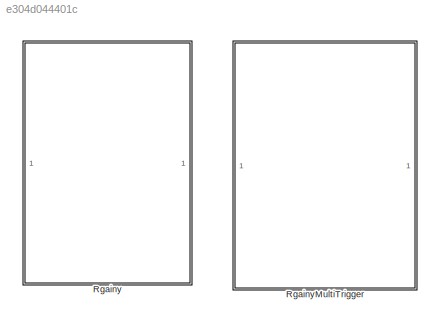
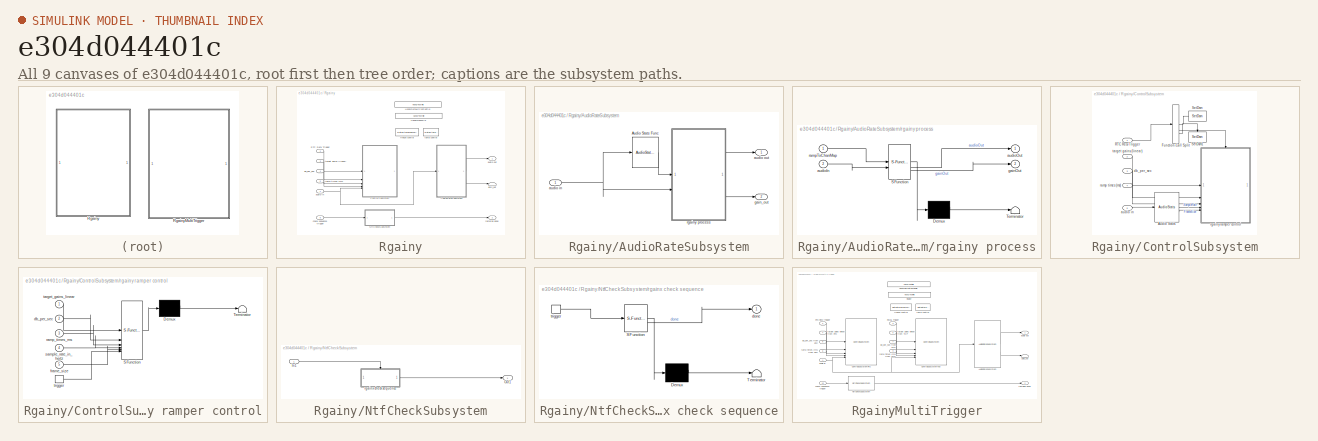
[diagram: thumbnail index - all 9 canvases of the model, root first then tree order]
MODEL slx_e304d044401c
KIND library
CONFIG AbsTol = auto
CONFIG EnableMultiTasking = off
CONFIG FixedStep = auto
CONFIG MaxStep = auto
CONFIG MinStep = auto
CONFIG RelTol = 1e-3
CONFIG SampleTimeConstraint = Unconstrained
CONFIG SolverName = VariableStepAuto
CONFIG StartTime = 0.0
CONFIG StopTime = 10.0
BLOCK [SubSystem] Rgainy
BLOCK [SubSystem] Rgainy/AudioRateSubsystem
BLOCK [Reference] Rgainy/AudioRateSubsystem/Audio Stats Func  REF=AudioStats/AudioStatsFunc
  SourceBlock = AudioStats/AudioStatsFunc
  SourceProductName = Bose Talaria
  SourceType = Talaria Audio Statistics Function
BLOCK [Inport] Rgainy/AudioRateSubsystem/audio in
BLOCK [Outport] Rgainy/AudioRateSubsystem/audio out
  VectorParamsAs1DForOutWhenUnconnected = off
BLOCK [Outport] Rgainy/AudioRateSubsystem/gain_out
  Port = 2
BLOCK [SubSystem] Rgainy/AudioRateSubsystem/rgainy process
  ErrorFcn = Stateflow.Translate.translate
  PermitHierarchicalResolution = ExplicitOnly
  RTWSystemCode = Reusable function
  SFBlockType = MATLAB Function
  TreatAsAtomicUnit = on
BLOCK [Demux] Rgainy/AudioRateSubsystem/rgainy process/ Demux 
  Outputs = 1
BLOCK [S-Function] Rgainy/AudioRateSubsystem/rgainy process/ SFunction 
  EnableBusSupport = off
  FunctionName = sf_sfun
  Parameters = MaskNumRampers
  PortCounts = [2 3]
  SFcnIsStateOwnerBlock = off
  SFunctionDeploymentMode = off
  Tag = Stateflow S-Function 3
BLOCK [Terminator] Rgainy/AudioRateSubsystem/rgainy process/ Terminator 
BLOCK [Inport] Rgainy/AudioRateSubsystem/rgainy process/audioIn
  Port = 2
BLOCK [Outport] Rgainy/AudioRateSubsystem/rgainy process/audioOut
  VectorParamsAs1DForOutWhenUnconnected = off
BLOCK [Outport] Rgainy/AudioRateSubsystem/rgainy process/gainOut
  Port = 2
  VectorParamsAs1DForOutWhenUnconnected = off
BLOCK [Inport] Rgainy/AudioRateSubsystem/rgainy process/rampToChanMap
BLOCK [SubSystem] Rgainy/ControlSubsystem
BLOCK [Reference] Rgainy/ControlSubsystem/Audio Stats  REF=AudioStats/AudioStats
  SourceBlock = AudioStats/AudioStats
  SourceProductName = Bose Talaria
  SourceType = Talaria Audio Statistics
BLOCK [FunctionCallSplit] Rgainy/ControlSubsystem/Function-Call Split
  IconShape = distinctive
  NumOutputPorts = 3
  OutputPortLayout = default
BLOCK [Inport] Rgainy/ControlSubsystem/RTC Recv Trigger
BLOCK [Reference] Rgainy/ControlSubsystem/SetDsm  REF=SetDsm/SetDsm
  SourceBlock = SetDsm/SetDsm
  SourceProductName = Bose Talaria
  SourceType = Talaria Set DSM
BLOCK [Reference] Rgainy/ControlSubsystem/SetDsm1  REF=SetDsm/SetDsm
  SourceBlock = SetDsm/SetDsm
  SourceProductName = Bose Talaria
  SourceType = Talaria Set DSM
BLOCK [Inport] Rgainy/ControlSubsystem/audio in
  Port = 5
BLOCK [Inport] Rgainy/ControlSubsystem/db_per_sec
  Port = 3
BLOCK [Inport] Rgainy/ControlSubsystem/ramp times (ms)
  Port = 4
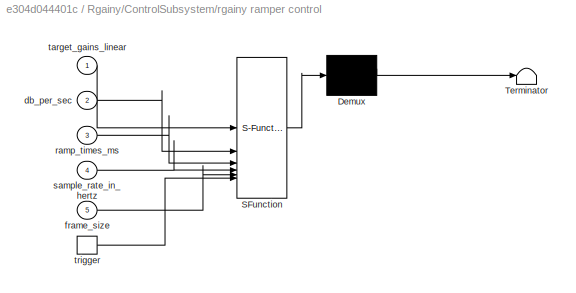
BLOCK [SubSystem] Rgainy/ControlSubsystem/rgainy ramper control
  ErrorFcn = Stateflow.Translate.translate
  PermitHierarchicalResolution = ExplicitOnly
  RTWSystemCode = Reusable function
  SFBlockType = MATLAB Function
  TreatAsAtomicUnit = on
BLOCK [Demux] Rgainy/ControlSubsystem/rgainy ramper control/ Demux 
  Outputs = 1
BLOCK [S-Function] Rgainy/ControlSubsystem/rgainy ramper control/ SFunction 
  EnableBusSupport = off
  FunctionName = sf_sfun
  Parameters = MaskNumRampers
  PortCounts = [6 1]
  SFcnIsStateOwnerBlock = off
  SFunctionDeploymentMode = off
  Tag = Stateflow S-Function 1
BLOCK [Terminator] Rgainy/ControlSubsystem/rgainy ramper control/ Terminator 
BLOCK [Inport] Rgainy/ControlSubsystem/rgainy ramper control/db_per_sec
  Port = 2
BLOCK [Inport] Rgainy/ControlSubsystem/rgainy ramper control/frame_size
  Port = 5
BLOCK [Inport] Rgainy/ControlSubsystem/rgainy ramper control/ramp_times_ms
  Port = 3
BLOCK [Inport] Rgainy/ControlSubsystem/rgainy ramper control/sample_rate_in_hertz
  Port = 4
BLOCK [Inport] Rgainy/ControlSubsystem/rgainy ramper control/target_gains_linear
BLOCK [TriggerPort] Rgainy/ControlSubsystem/rgainy ramper control/trigger
  ShowOutputPort = on
  StatesWhenEnabling = held
  TriggerType = function-call
  VariantControl = Variant
BLOCK [Inport] Rgainy/ControlSubsystem/target gains (linear)
  Port = 2
BLOCK [Reference] Rgainy/HandyDefaultConfigFile  REF=HandyTextFile/HandyTextFile
  SourceBlock = HandyTextFile/HandyTextFile
  SourceProductName = Bose Talaria
  SourceType = Talaria Handy Text File
BLOCK [Reference] Rgainy/HandyMaskFile  REF=HandyTextFile/HandyTextFile
  SourceBlock = HandyTextFile/HandyTextFile
  SourceProductName = Bose Talaria
  SourceType = Talaria Handy Text File
BLOCK [SubSystem] Rgainy/NtfCheckSubsystem
BLOCK [Inport] Rgainy/NtfCheckSubsystem/In1
BLOCK [Outport] Rgainy/NtfCheckSubsystem/Out1
BLOCK [SubSystem] Rgainy/NtfCheckSubsystem/rgainx check sequence
  ErrorFcn = Stateflow.Translate.translate
  PermitHierarchicalResolution = ExplicitOnly
  SFBlockType = MATLAB Function
  TreatAsAtomicUnit = on
BLOCK [Demux] Rgainy/NtfCheckSubsystem/rgainx check sequence/ Demux 
  Outputs = 1
BLOCK [S-Function] Rgainy/NtfCheckSubsystem/rgainx check sequence/ SFunction 
  EnableBusSupport = off
  FunctionName = sf_sfun
  Parameters = MaskNumRampers
  PortCounts = [1 2]
  SFcnIsStateOwnerBlock = off
  SFunctionDeploymentMode = off
  Tag = Stateflow S-Function 2
BLOCK [Terminator] Rgainy/NtfCheckSubsystem/rgainx check sequence/ Terminator 
BLOCK [Outport] Rgainy/NtfCheckSubsystem/rgainx check sequence/done
  VectorParamsAs1DForOutWhenUnconnected = off
BLOCK [TriggerPort] Rgainy/NtfCheckSubsystem/rgainx check sequence/trigger
  ShowOutputPort = on
  StatesWhenEnabling = held
  TriggerType = function-call
  VariantControl = Variant
BLOCK [Inport] Rgainy/RTC Recv Trigger
  Port = 2
BLOCK [Inport] Rgainy/audio in
BLOCK [Outport] Rgainy/audio out
  VectorParamsAs1DForOutWhenUnconnected = off
BLOCK [Inport] Rgainy/check sequence trigger
  Port = 6
BLOCK [Inport] Rgainy/db_per_sec
  Port = 4
BLOCK [DataStoreMemory] Rgainy/freeze control
  DataStoreName = Freeze
  EmbeddedSignalClassName = Bose.Signal
  OutDataTypeStr = uint32
  ShowAdditionalParam = off
  SignalType = real
BLOCK [Terminator] Rgainy/gain_out
BLOCK [DataStoreMemory] Rgainy/ramp control
  DataStoreName = Rampers
  EmbeddedSignalClassName = Bose.Signal
  InitialValue = Config.DlgRamperInit
  OutDataTypeStr = Bus: rgain_bus
  ShowAdditionalParam = off
  SignalType = real
BLOCK [Inport] Rgainy/ramp times (ms)
  Port = 5
BLOCK [Outport] Rgainy/ramping done
  Port = 2
  VectorParamsAs1DForOutWhenUnconnected = off
BLOCK [Inport] Rgainy/target gains (linear)
  Port = 3
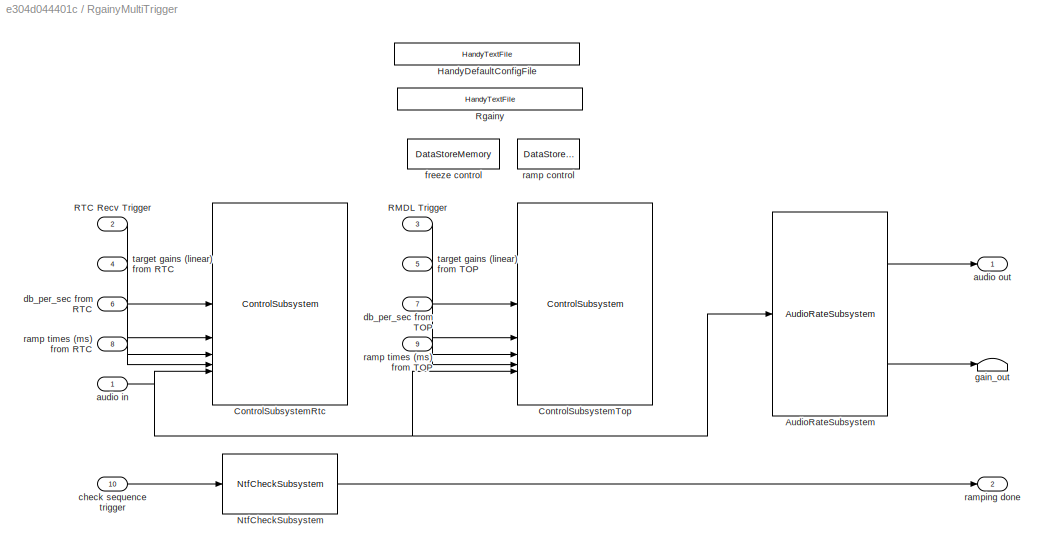
BLOCK [SubSystem] RgainyMultiTrigger
  InitFcn = GainLibrary_data\nRgainName = "Rgainy";
BLOCK [Reference] RgainyMultiTrigger/AudioRateSubsystem  REF=$bdroot/Rgainy/AudioRateSubsystem
  SourceBlock = $bdroot/Rgainy/AudioRateSubsystem
  SourceType = SubSystem
BLOCK [Reference] RgainyMultiTrigger/ControlSubsystemRtc  REF=$bdroot/Rgainy/ControlSubsystem
  SourceBlock = $bdroot/Rgainy/ControlSubsystem
  SourceType = SubSystem
BLOCK [Reference] RgainyMultiTrigger/ControlSubsystemTop  REF=$bdroot/Rgainy/ControlSubsystem
  SourceBlock = $bdroot/Rgainy/ControlSubsystem
  SourceType = SubSystem
BLOCK [Reference] RgainyMultiTrigger/HandyDefaultConfigFile  REF=HandyTextFile/HandyTextFile
  SourceBlock = HandyTextFile/HandyTextFile
  SourceProductName = Bose Talaria
  SourceType = Talaria Handy Text File
BLOCK [Reference] RgainyMultiTrigger/NtfCheckSubsystem  REF=$bdroot/Rgainy/NtfCheckSubsystem
  SourceBlock = $bdroot/Rgainy/NtfCheckSubsystem
  SourceType = SubSystem
BLOCK [Inport] RgainyMultiTrigger/RMDL Trigger
  Port = 3
BLOCK [Inport] RgainyMultiTrigger/RTC Recv Trigger
  Port = 2
BLOCK [Reference] RgainyMultiTrigger/Rgainy  REF=HandyTextFile/HandyTextFile
  SourceBlock = HandyTextFile/HandyTextFile
  SourceProductName = Bose Talaria
  SourceType = Talaria Handy Text File
BLOCK [Inport] RgainyMultiTrigger/audio in
BLOCK [Outport] RgainyMultiTrigger/audio out
  NameLocation = top
  VectorParamsAs1DForOutWhenUnconnected = off
BLOCK [Inport] RgainyMultiTrigger/check sequence trigger
  Port = 10
BLOCK [Inport] RgainyMultiTrigger/db_per_sec from RTC
  Port = 6
BLOCK [Inport] RgainyMultiTrigger/db_per_sec from TOP
  Port = 7
BLOCK [DataStoreMemory] RgainyMultiTrigger/freeze control
  DataStoreName = Freeze
  EmbeddedSignalClassName = Bose.Signal
  OutDataTypeStr = uint32
  ShowAdditionalParam = off
  SignalType = real
BLOCK [Terminator] RgainyMultiTrigger/gain_out
BLOCK [DataStoreMemory] RgainyMultiTrigger/ramp control
  DataStoreName = Rampers
  EmbeddedSignalClassName = Bose.Signal
  InitialValue = Config.DlgRamperInit
  OutDataTypeStr = Bus: rgain_bus
  ShowAdditionalParam = off
  SignalType = real
BLOCK [Inport] RgainyMultiTrigger/ramp times (ms) from RTC
  Port = 8
BLOCK [Inport] RgainyMultiTrigger/ramp times (ms) from TOP
  Port = 9
BLOCK [Outport] RgainyMultiTrigger/ramping done
  Port = 2
  VectorParamsAs1DForOutWhenUnconnected = off
BLOCK [Inport] RgainyMultiTrigger/target gains (linear) from RTC
  Port = 4
BLOCK [Inport] RgainyMultiTrigger/target gains (linear) from TOP
  Port = 5
CHART Rgainy/ControlSubsystem/rgainy ramper control states=1 transitions=1
  STATE_LABEL 'eML_blk_kernel()'
  STATE_LABEL 'SCRIPT:\nfunction control(...\n     target_gains_linear, db_per_sec, ramp_times_ms, sample_rate_in_hertz, ...\n     frame_size, MaskNumRampers)\n%#codegen\n\n% Dimensions of target_gains_linear must match the number of rampers. \n%\n% db_per_sec takes precidence:\n% If db_per_sec has a non-zero value then any ramp_times_ms values are\n% ignored and the db_per_sec is used to determine ramper timing.\n%\n% The ...<+3608ch>'
CHART Rgainy/NtfCheckSubsystem/rgainx check sequence states=1 transitions=1
  STATE_LABEL 'eML_blk_kernel()'
  STATE_LABEL 'SCRIPT:\nfunction done = GetCompletedSequence(MaskNumRampers)\n% Check if the ramping is done by comparing the target and current gains.\n\nglobal Rampers;\n\n% Assume the work is complete until proven otherwise\ndone = true;\nfor i=1:MaskNumRampers\n   if (Rampers(i).targetGain ~= Rampers(i).currentGain)\n       done = false; % just proved otherwise\n       break;\n   end\nend'
CHART Rgainy/AudioRateSubsystem/rgainy process states=1 transitions=1
  STATE_LABEL 'eML_blk_kernel()'
  STATE_LABEL 'SCRIPT:\nfunction [audioOut, gainOut]  = rgainx(rampToChanMap, audioIn, MaskNumRampers)\n%#codegen\n\nglobal Rampers;\nglobal Freeze;\n\n% set the size of the output buffer\naudioOut = coder.nullcopy(audioIn);\n\n[frame_size,channel_count] = size(audioIn);\ngainOut = single(ones(1,channel_count));\n\n% Channel indexes start in the map just after the ramper channel counts.\n% Create an iterator to walk the chann...<+1647ch>'
CHART  states=0 transitions=0
CHART  states=0 transitions=0
CHART  states=0 transitions=0
